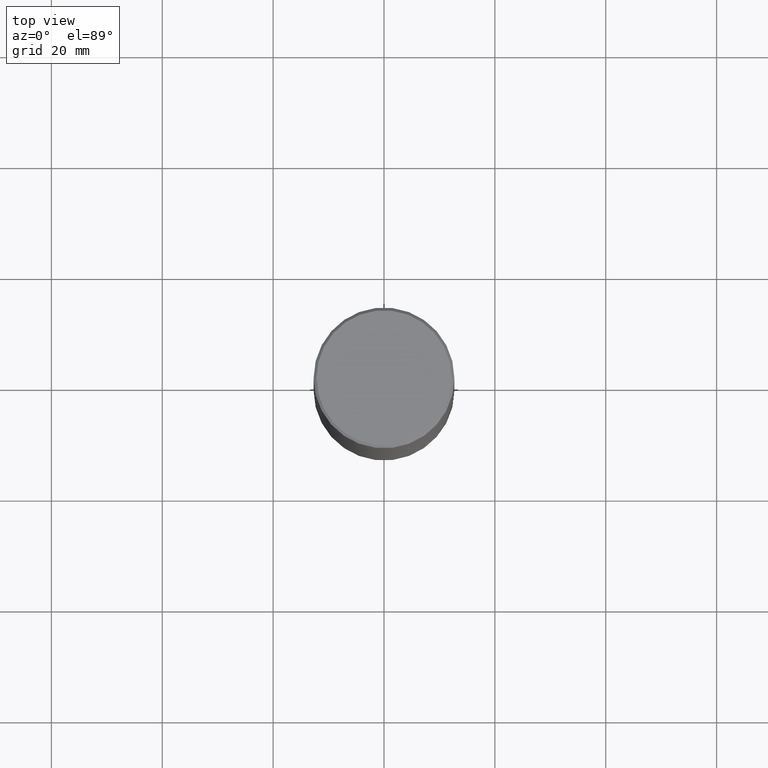
[diagram: clean part render]
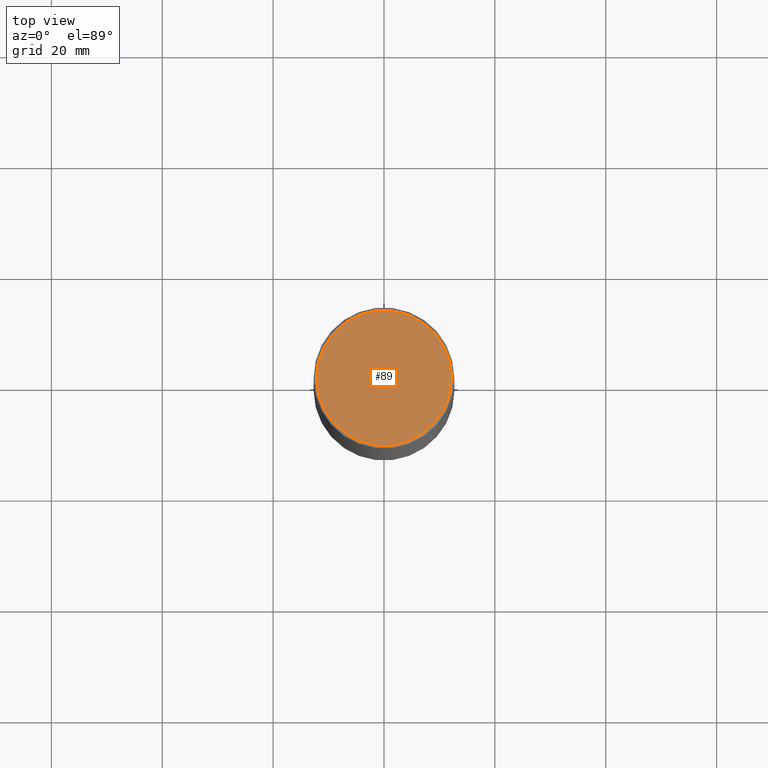
[diagram: same view with one face highlighted and labeled with its STEP entity id]
A machine part, top view. The second image highlights one B-rep face of the part: STEP entity #89.
In plain terms, the highlighted planar face has unit normal (0, -0, -1).
Its self-contained STEP definition (entity closure, byte-faithful):
#6 = CARTESIAN_POINT ( 'NONE',  ( -3.131554243005659264E-46, 4.471029511141341874E-32, 1.280553747030123384E-17 ) ) ;
#17 = EDGE_LOOP ( 'NONE', ( #210, #194 ) ) ;
#57 = CIRCLE ( 'NONE', #260, 0.4799999999999995381 ) ;
#69 = DIRECTION ( 'NONE',  ( 2.438088387897960049E-29, -3.491481338843145188E-15, -1.000000000000000000 ) ) ;
#89 = ADVANCED_FACE ( 'NONE', ( #103 ), #211, .F. ) ;
#101 = VERTEX_POINT ( 'NONE', #306 ) ;
#103 = FACE_OUTER_BOUND ( 'NONE', #17, .T. ) ;
#123 = AXIS2_PLACEMENT_3D ( 'NONE', #321, #69, #297 ) ;
#125 = DIRECTION ( 'NONE',  ( -2.445468806185136597E-29, 3.491481338843145583E-15, 1.000000000000000000 ) ) ;
#144 = EDGE_CURVE ( 'NONE', #101, #300, #232, .T. ) ;
#145 = DIRECTION ( 'NONE',  ( -2.445468806185136597E-29, 3.491481338843145583E-15, 1.000000000000000000 ) ) ;
#183 = DIRECTION ( 'NONE',  ( 1.000000000000000000, -6.982962677686266711E-15, 4.876036955247133888E-29 ) ) ;
#194 = ORIENTED_EDGE ( 'NONE', *, *, #144, .T. ) ;
#210 = ORIENTED_EDGE ( 'NONE', *, *, #316, .T. ) ;
#211 = PLANE ( 'NONE',  #123 ) ;
#220 = CARTESIAN_POINT ( 'NONE',  ( -3.131554243005659264E-46, 4.471029511141341874E-32, 1.280553747030123384E-17 ) ) ;
#232 = CIRCLE ( 'NONE', #348, 0.4799999999999995381 ) ;
#260 = AXIS2_PLACEMENT_3D ( 'NONE', #6, #125, #183 ) ;
#297 = DIRECTION ( 'NONE',  ( -1.000000000000000000, 6.982962677686265922E-15, -4.876176775795935793E-29 ) ) ;
#300 = VERTEX_POINT ( 'NONE', #308 ) ;
#306 = CARTESIAN_POINT ( 'NONE',  ( 0.4799999999999995381, -3.396558832296479338E-15, 1.280553747032483033E-17 ) ) ;
#308 = CARTESIAN_POINT ( 'NONE',  ( -0.4799999999999995381, 3.386736898677836041E-15, 1.280553747027767124E-17 ) ) ;
#316 = EDGE_CURVE ( 'NONE', #300, #101, #57, .T. ) ;
#321 = CARTESIAN_POINT ( 'NONE',  ( 3.351822085289404392E-15, 0.4799999999999995381, -1.669508273909557670E-15 ) ) ;
#348 = AXIS2_PLACEMENT_3D ( 'NONE', #220, #145, #360 ) ;
#360 = DIRECTION ( 'NONE',  ( 1.000000000000000000, -6.982962677686266711E-15, 4.876036955247133888E-29 ) ) ;